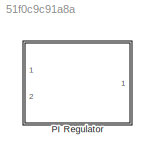
MODEL slx_51f0c9c91a8a
KIND model
CONFIG AbsTol = auto
CONFIG FixedStep = auto
CONFIG MaxStep = auto
CONFIG MinStep = auto
CONFIG RelTol = 1e-3
CONFIG SampleTimeConstraint = Unconstrained
CONFIG Solver = ode45
CONFIG SolverMode = Auto
CONFIG SolverName = ode45
CONFIG StartTime = 0.0
CONFIG StopTime = 10.0
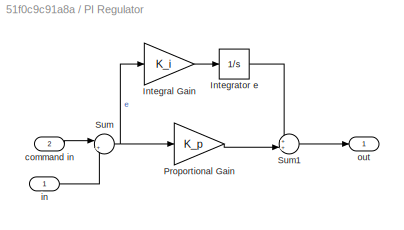
BLOCK [SubSystem] PI Regulator
  Ports = [2, 1]
  RequestExecContextInheritance = off
BLOCK [Gain] PI Regulator/Integral Gain
  Gain = K_i
BLOCK [Integrator] PI Regulator/Integrator e
  Ports = [1, 1]
BLOCK [Gain] PI Regulator/Proportional Gain
  Gain = K_p
BLOCK [Sum] PI Regulator/Sum
  IconShape = round
  InputSameDT = off
  Inputs = |+-
  OutDataTypeStr = Inherit: Inherit via internal rule
  Ports = [2, 1]
BLOCK [Sum] PI Regulator/Sum1
  IconShape = round
  InputSameDT = off
  Inputs = ++|
  OutDataTypeStr = Inherit: Inherit via internal rule
  Ports = [2, 1]
BLOCK [Inport] PI Regulator/command in
  IconDisplay = Port number
  Port = 2
BLOCK [Inport] PI Regulator/in
  IconDisplay = Port number
BLOCK [Outport] PI Regulator/out
  IconDisplay = Port number
LINE PI Regulator/Integral Gain:1 -> PI Regulator/Integrator e:1
LINE PI Regulator/Integrator e:1 -> PI Regulator/Sum1:1
LINE PI Regulator/Proportional Gain:1 -> PI Regulator/Sum1:2
LINE PI Regulator/Sum1:1 -> PI Regulator/out:1
NET PI Regulator/Sum:1 -> PI Regulator/Integral Gain:1, PI Regulator/Proportional Gain:1
LINE PI Regulator/command in:1 -> PI Regulator/Sum:1
LINE PI Regulator/in:1 -> PI Regulator/Sum:2
note: NET lines group one-source signal fan-out (src -> all destinations, sorted); 1:1 wires keep LINE
